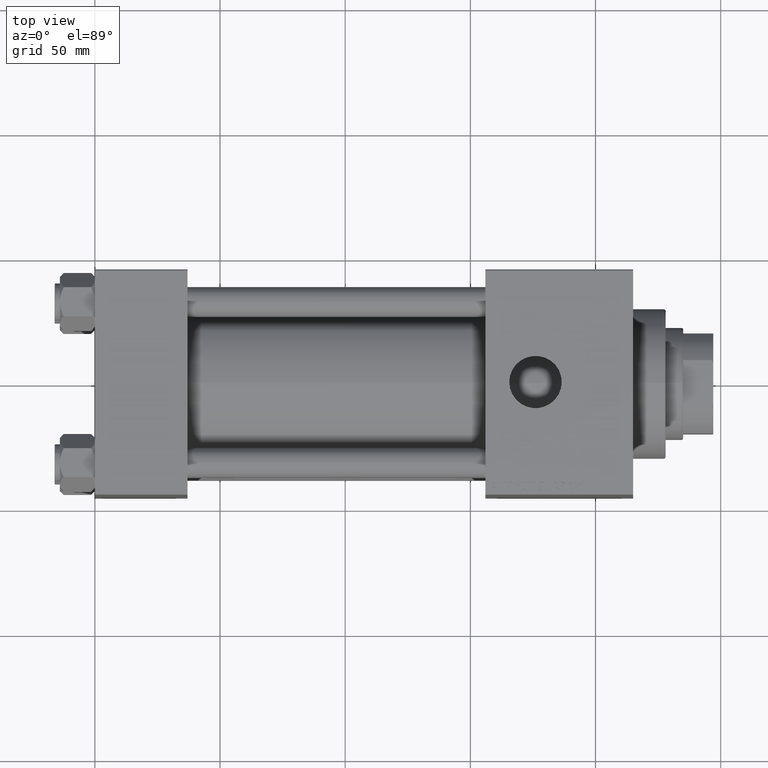
[diagram: clean part render]
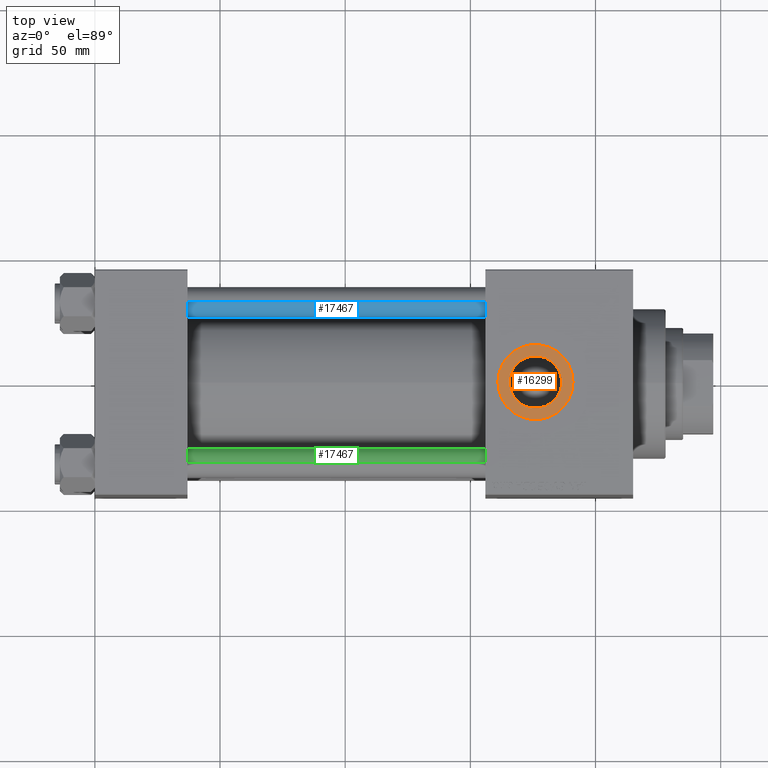
[diagram: same view with three faces highlighted in distinct colors, each labeled with its STEP entity id]
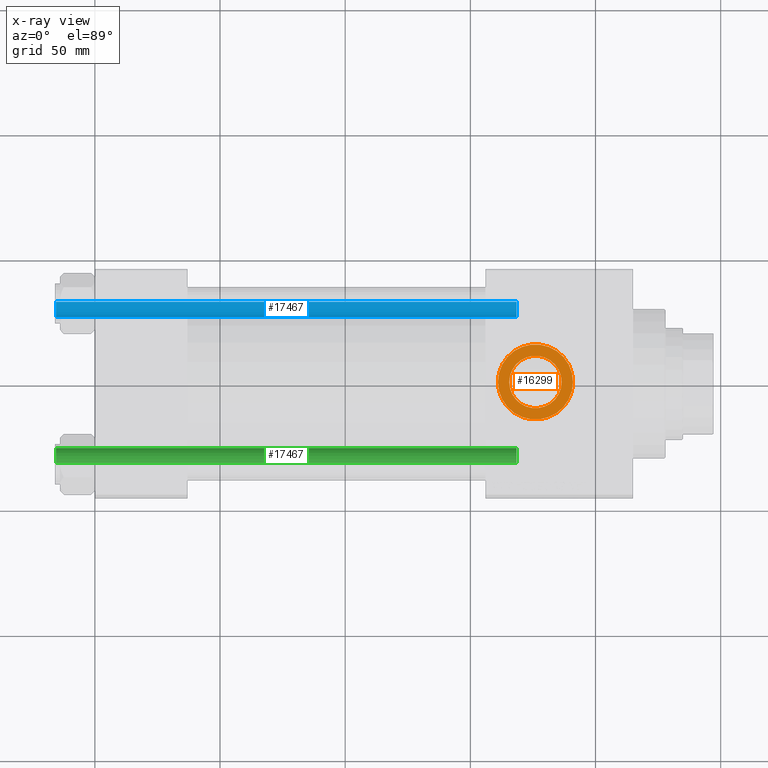
[diagram: x-ray of the same camera — body ghosted, the three highlighted faces saturated]
A machine part, top view with three faces highlighted in distinct colors.
The next image is the same camera in x-ray (body ghosted, the three faces saturated) — at least one of them is partly hidden behind the body in this view.
Their STEP definitions:

[orange] entity #16299 — the highlighted planar face has unit normal (0, 0, 1).
#357 = DIRECTION ( 'NONE',  ( 0.000000000000000000, 0.000000000000000000, 1.000000000000000000 ) ) ;
#5008 = PLANE ( 'NONE',  #41784 ) ;
#5262 = FACE_BOUND ( 'NONE', #30128, .T. ) ;
#6171 = CIRCLE ( 'NONE', #48247, 15.00000000000001421 ) ;
#9981 = ORIENTED_EDGE ( 'NONE', *, *, #17612, .T. ) ;
#12185 = EDGE_LOOP ( 'NONE', ( #39684, #34092 ) ) ;
#15858 = DIRECTION ( 'NONE',  ( 1.000000000000000000, 0.000000000000000000, 0.000000000000000000 ) ) ;
#16299 = ADVANCED_FACE ( 'NONE', ( #5262, #34466 ), #5008, .T. ) ;
#16770 = AXIS2_PLACEMENT_3D ( 'NONE', #42425, #46240, #26478 ) ;
#17612 = EDGE_CURVE ( 'NONE', #49370, #45015, #30480, .T. ) ;
#20216 = DIRECTION ( 'NONE',  ( 0.000000000000000000, 0.000000000000000000, 1.000000000000000000 ) ) ;
#21880 = EDGE_CURVE ( 'NONE', #22713, #42121, #33064, .T. ) ;
#22713 = VERTEX_POINT ( 'NONE', #26305 ) ;
#24181 = CARTESIAN_POINT ( 'NONE',  ( 191.0000000000000000, -6.938893903907229955E-15, 44.80000000000000426 ) ) ;
#24515 = DIRECTION ( 'NONE',  ( 1.000000000000000000, 0.000000000000000000, -0.000000000000000000 ) ) ;
#24660 = AXIS2_PLACEMENT_3D ( 'NONE', #25752, #41216, #15858 ) ;
#24944 = DIRECTION ( 'NONE',  ( 0.000000000000000000, 0.000000000000000000, 1.000000000000000000 ) ) ;
#25666 = ORIENTED_EDGE ( 'NONE', *, *, #42974, .T. ) ;
#25752 = CARTESIAN_POINT ( 'NONE',  ( 176.0000000000000000, -6.938893903907229955E-15, 44.80000000000000426 ) ) ;
#26305 = CARTESIAN_POINT ( 'NONE',  ( 160.9999999999999716, -5.101923705186194844E-15, 44.80000000000000426 ) ) ;
#26478 = DIRECTION ( 'NONE',  ( 1.000000000000000000, 0.000000000000000000, 0.000000000000000000 ) ) ;
#26484 = CARTESIAN_POINT ( 'NONE',  ( 176.0000000000000000, -6.938893903907229955E-15, 44.80000000000000426 ) ) ;
#28989 = CARTESIAN_POINT ( 'NONE',  ( 165.5200000000000102, -6.938893903907229955E-15, 44.80000000000000426 ) ) ;
#30128 = EDGE_LOOP ( 'NONE', ( #9981, #25666 ) ) ;
#30480 = CIRCLE ( 'NONE', #16770, 10.47999999999998977 ) ;
#30770 = DIRECTION ( 'NONE',  ( 1.000000000000000000, 0.000000000000000000, 0.000000000000000000 ) ) ;
#31470 = AXIS2_PLACEMENT_3D ( 'NONE', #26484, #357, #30770 ) ;
#32790 = CARTESIAN_POINT ( 'NONE',  ( 176.0000000000000000, -6.938893903907229955E-15, 44.80000000000000426 ) ) ;
#33064 = CIRCLE ( 'NONE', #31470, 15.00000000000001421 ) ;
#34092 = ORIENTED_EDGE ( 'NONE', *, *, #21880, .T. ) ;
#34466 = FACE_OUTER_BOUND ( 'NONE', #12185, .T. ) ;
#38354 = CARTESIAN_POINT ( 'NONE',  ( 186.4799999999999898, -5.655464058400805256E-15, 44.80000000000000426 ) ) ;
#39684 = ORIENTED_EDGE ( 'NONE', *, *, #46587, .T. ) ;
#40859 = CIRCLE ( 'NONE', #24660, 10.47999999999998977 ) ;
#41141 = DIRECTION ( 'NONE',  ( 1.000000000000000000, 0.000000000000000000, 0.000000000000000000 ) ) ;
#41216 = DIRECTION ( 'NONE',  ( -0.000000000000000000, -0.000000000000000000, -1.000000000000000000 ) ) ;
#41784 = AXIS2_PLACEMENT_3D ( 'NONE', #43788, #20216, #24515 ) ;
#42121 = VERTEX_POINT ( 'NONE', #24181 ) ;
#42425 = CARTESIAN_POINT ( 'NONE',  ( 176.0000000000000000, -6.938893903907229955E-15, 44.80000000000000426 ) ) ;
#42974 = EDGE_CURVE ( 'NONE', #45015, #49370, #40859, .T. ) ;
#43788 = CARTESIAN_POINT ( 'NONE',  ( 176.0000000000000000, -6.938893903907229955E-15, 44.80000000000000426 ) ) ;
#45015 = VERTEX_POINT ( 'NONE', #38354 ) ;
#46240 = DIRECTION ( 'NONE',  ( -0.000000000000000000, -0.000000000000000000, -1.000000000000000000 ) ) ;
#46587 = EDGE_CURVE ( 'NONE', #42121, #22713, #6171, .T. ) ;
#48247 = AXIS2_PLACEMENT_3D ( 'NONE', #32790, #24944, #41141 ) ;
#49370 = VERTEX_POINT ( 'NONE', #28989 ) ;

[blue] entity #17467 — the highlighted cylindrical surface (edge-blend (fillet) strip) has radius 6 mm, axis along (-1, -0, 0).
#1181 = CYLINDRICAL_SURFACE ( 'NONE', #41030, 6.000000000000000888 ) ;
#2994 = VERTEX_POINT ( 'NONE', #25111 ) ;
#3162 = DIRECTION ( 'NONE',  ( 0.000000000000000000, 0.000000000000000000, -1.000000000000000000 ) ) ;
#3383 = AXIS2_PLACEMENT_3D ( 'NONE', #22897, #3162, #15069 ) ;
#5243 = DIRECTION ( 'NONE',  ( -0.000000000000000000, -0.000000000000000000, -1.000000000000000000 ) ) ;
#6296 = LINE ( 'NONE', #24561, #47417 ) ;
#10336 = ORIENTED_EDGE ( 'NONE', *, *, #31738, .T. ) ;
#11433 = VERTEX_POINT ( 'NONE', #14217 ) ;
#13824 = DIRECTION ( 'NONE',  ( 1.000000000000000000, 0.000000000000000000, 0.000000000000000000 ) ) ;
#14217 = CARTESIAN_POINT ( 'NONE',  ( -6.000000000000000888, 0.000000000000000000, 0.5000000000000281997 ) ) ;
#14309 = EDGE_CURVE ( 'NONE', #2994, #11433, #6296, .T. ) ;
#15069 = DIRECTION ( 'NONE',  ( 1.000000000000000000, 0.000000000000000000, 0.000000000000000000 ) ) ;
#15550 = CIRCLE ( 'NONE', #43901, 6.000000000000000888 ) ;
#17281 = DIRECTION ( 'NONE',  ( -0.000000000000000000, -0.000000000000000000, -1.000000000000000000 ) ) ;
#17467 = ADVANCED_FACE ( 'NONE', ( #20448 ), #1181, .T. ) ;
#18104 = EDGE_CURVE ( 'NONE', #35965, #23841, #40582, .T. ) ;
#20448 = FACE_OUTER_BOUND ( 'NONE', #28385, .T. ) ;
#22897 = CARTESIAN_POINT ( 'NONE',  ( 0.000000000000000000, 0.000000000000000000, 184.5000000000000000 ) ) ;
#23841 = VERTEX_POINT ( 'NONE', #44359 ) ;
#24561 = CARTESIAN_POINT ( 'NONE',  ( -6.000000000000000888, 0.000000000000000000, 185.0000000000000000 ) ) ;
#25111 = CARTESIAN_POINT ( 'NONE',  ( -6.000000000000000888, 0.000000000000000000, 184.5000000000000000 ) ) ;
#25237 = CIRCLE ( 'NONE', #3383, 6.000000000000000888 ) ;
#28385 = EDGE_LOOP ( 'NONE', ( #32566, #34735, #32807, #10336 ) ) ;
#28777 = CARTESIAN_POINT ( 'NONE',  ( 0.000000000000000000, 0.000000000000000000, 0.5000000000000281997 ) ) ;
#31738 = EDGE_CURVE ( 'NONE', #11433, #23841, #15550, .T. ) ;
#32566 = ORIENTED_EDGE ( 'NONE', *, *, #18104, .F. ) ;
#32807 = ORIENTED_EDGE ( 'NONE', *, *, #14309, .T. ) ;
#33573 = DIRECTION ( 'NONE',  ( -0.000000000000000000, -0.000000000000000000, 1.000000000000000000 ) ) ;
#34735 = ORIENTED_EDGE ( 'NONE', *, *, #34862, .T. ) ;
#34862 = EDGE_CURVE ( 'NONE', #35965, #2994, #25237, .T. ) ;
#35134 = CARTESIAN_POINT ( 'NONE',  ( 0.000000000000000000, 0.000000000000000000, 185.0000000000000000 ) ) ;
#35965 = VERTEX_POINT ( 'NONE', #44153 ) ;
#36040 = CARTESIAN_POINT ( 'NONE',  ( 6.000000000000000888, 7.347880794884120722E-16, 185.0000000000000000 ) ) ;
#40582 = LINE ( 'NONE', #36040, #41823 ) ;
#41030 = AXIS2_PLACEMENT_3D ( 'NONE', #35134, #5243, #47820 ) ;
#41823 = VECTOR ( 'NONE', #17281, 1000.000000000000000 ) ;
#43901 = AXIS2_PLACEMENT_3D ( 'NONE', #28777, #33573, #13824 ) ;
#44153 = CARTESIAN_POINT ( 'NONE',  ( 6.000000000000000888, 7.347880794884120722E-16, 184.5000000000000000 ) ) ;
#44359 = CARTESIAN_POINT ( 'NONE',  ( 6.000000000000000888, 7.347880794884120722E-16, 0.5000000000000281997 ) ) ;
#44578 = DIRECTION ( 'NONE',  ( -0.000000000000000000, -0.000000000000000000, -1.000000000000000000 ) ) ;
#47417 = VECTOR ( 'NONE', #44578, 1000.000000000000000 ) ;
#47820 = DIRECTION ( 'NONE',  ( -1.000000000000000000, 0.000000000000000000, 0.000000000000000000 ) ) ;

[green] entity #17467 — the highlighted cylindrical surface (edge-blend (fillet) strip) has radius 6 mm, axis along (1, 0, 0).
#1181 = CYLINDRICAL_SURFACE ( 'NONE', #41030, 6.000000000000000888 ) ;
#2994 = VERTEX_POINT ( 'NONE', #25111 ) ;
#3162 = DIRECTION ( 'NONE',  ( 0.000000000000000000, 0.000000000000000000, -1.000000000000000000 ) ) ;
#3383 = AXIS2_PLACEMENT_3D ( 'NONE', #22897, #3162, #15069 ) ;
#5243 = DIRECTION ( 'NONE',  ( -0.000000000000000000, -0.000000000000000000, -1.000000000000000000 ) ) ;
#6296 = LINE ( 'NONE', #24561, #47417 ) ;
#10336 = ORIENTED_EDGE ( 'NONE', *, *, #31738, .T. ) ;
#11433 = VERTEX_POINT ( 'NONE', #14217 ) ;
#13824 = DIRECTION ( 'NONE',  ( 1.000000000000000000, 0.000000000000000000, 0.000000000000000000 ) ) ;
#14217 = CARTESIAN_POINT ( 'NONE',  ( -6.000000000000000888, 0.000000000000000000, 0.5000000000000281997 ) ) ;
#14309 = EDGE_CURVE ( 'NONE', #2994, #11433, #6296, .T. ) ;
#15069 = DIRECTION ( 'NONE',  ( 1.000000000000000000, 0.000000000000000000, 0.000000000000000000 ) ) ;
#15550 = CIRCLE ( 'NONE', #43901, 6.000000000000000888 ) ;
#17281 = DIRECTION ( 'NONE',  ( -0.000000000000000000, -0.000000000000000000, -1.000000000000000000 ) ) ;
#17467 = ADVANCED_FACE ( 'NONE', ( #20448 ), #1181, .T. ) ;
#18104 = EDGE_CURVE ( 'NONE', #35965, #23841, #40582, .T. ) ;
#20448 = FACE_OUTER_BOUND ( 'NONE', #28385, .T. ) ;
#22897 = CARTESIAN_POINT ( 'NONE',  ( 0.000000000000000000, 0.000000000000000000, 184.5000000000000000 ) ) ;
#23841 = VERTEX_POINT ( 'NONE', #44359 ) ;
#24561 = CARTESIAN_POINT ( 'NONE',  ( -6.000000000000000888, 0.000000000000000000, 185.0000000000000000 ) ) ;
#25111 = CARTESIAN_POINT ( 'NONE',  ( -6.000000000000000888, 0.000000000000000000, 184.5000000000000000 ) ) ;
#25237 = CIRCLE ( 'NONE', #3383, 6.000000000000000888 ) ;
#28385 = EDGE_LOOP ( 'NONE', ( #32566, #34735, #32807, #10336 ) ) ;
#28777 = CARTESIAN_POINT ( 'NONE',  ( 0.000000000000000000, 0.000000000000000000, 0.5000000000000281997 ) ) ;
#31738 = EDGE_CURVE ( 'NONE', #11433, #23841, #15550, .T. ) ;
#32566 = ORIENTED_EDGE ( 'NONE', *, *, #18104, .F. ) ;
#32807 = ORIENTED_EDGE ( 'NONE', *, *, #14309, .T. ) ;
#33573 = DIRECTION ( 'NONE',  ( -0.000000000000000000, -0.000000000000000000, 1.000000000000000000 ) ) ;
#34735 = ORIENTED_EDGE ( 'NONE', *, *, #34862, .T. ) ;
#34862 = EDGE_CURVE ( 'NONE', #35965, #2994, #25237, .T. ) ;
#35134 = CARTESIAN_POINT ( 'NONE',  ( 0.000000000000000000, 0.000000000000000000, 185.0000000000000000 ) ) ;
#35965 = VERTEX_POINT ( 'NONE', #44153 ) ;
#36040 = CARTESIAN_POINT ( 'NONE',  ( 6.000000000000000888, 7.347880794884120722E-16, 185.0000000000000000 ) ) ;
#40582 = LINE ( 'NONE', #36040, #41823 ) ;
#41030 = AXIS2_PLACEMENT_3D ( 'NONE', #35134, #5243, #47820 ) ;
#41823 = VECTOR ( 'NONE', #17281, 1000.000000000000000 ) ;
#43901 = AXIS2_PLACEMENT_3D ( 'NONE', #28777, #33573, #13824 ) ;
#44153 = CARTESIAN_POINT ( 'NONE',  ( 6.000000000000000888, 7.347880794884120722E-16, 184.5000000000000000 ) ) ;
#44359 = CARTESIAN_POINT ( 'NONE',  ( 6.000000000000000888, 7.347880794884120722E-16, 0.5000000000000281997 ) ) ;
#44578 = DIRECTION ( 'NONE',  ( -0.000000000000000000, -0.000000000000000000, -1.000000000000000000 ) ) ;
#47417 = VECTOR ( 'NONE', #44578, 1000.000000000000000 ) ;
#47820 = DIRECTION ( 'NONE',  ( -1.000000000000000000, 0.000000000000000000, 0.000000000000000000 ) ) ;